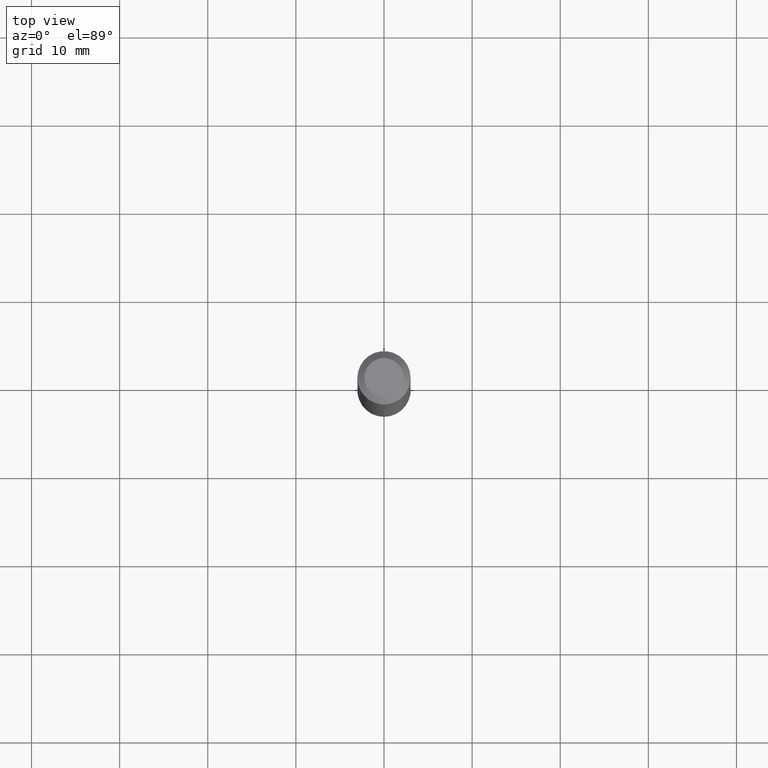
[diagram: clean part render]
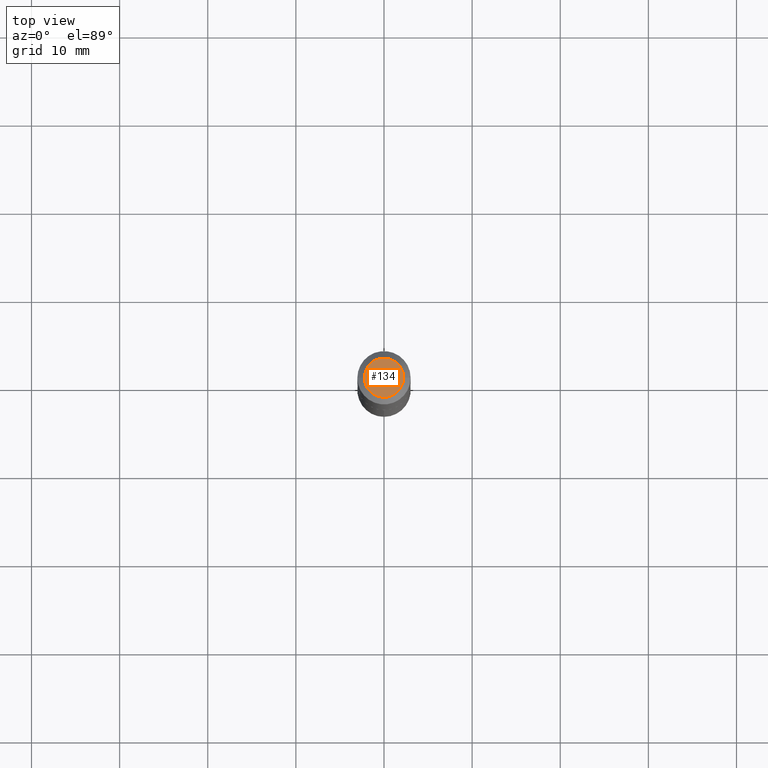
[diagram: same view with one face highlighted and labeled with its STEP entity id]
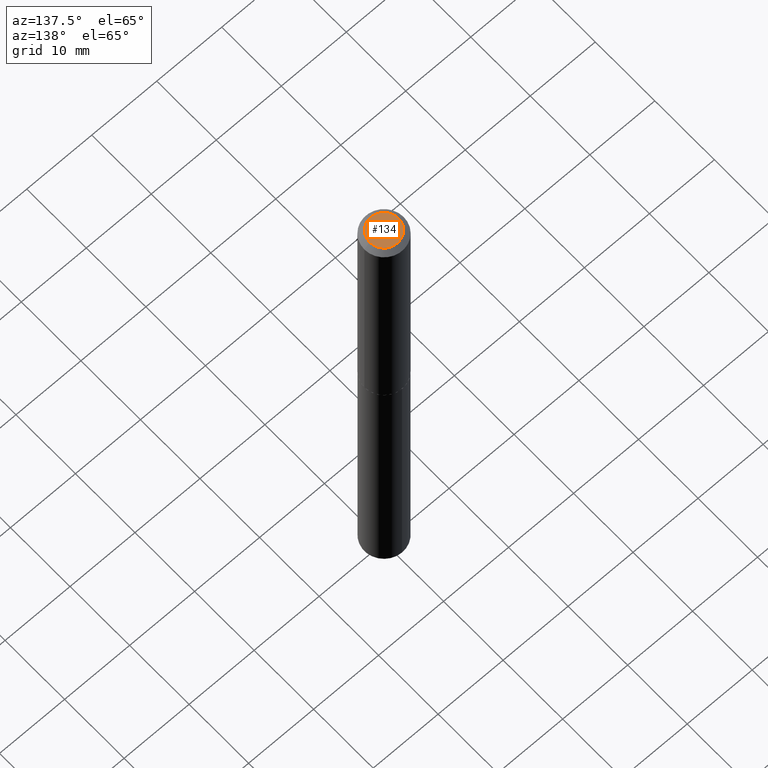
[diagram: same view with one face highlighted and labeled with its STEP entity id]
A machine part, top view. The second image highlights one B-rep face of the part: STEP entity #134.
A second angle (auxiliary view) of the same face is appended — the face is thin or edge-on in the first view.
In plain terms, the highlighted planar face has unit normal (0, -0, -1).
Its self-contained STEP definition (entity closure, byte-faithful):
#2 = PLANE ( 'NONE',  #358 ) ;
#22 = DIRECTION ( 'NONE',  ( -2.445468806185136597E-29, 3.491481338843145583E-15, 1.000000000000000000 ) ) ;
#30 = CARTESIAN_POINT ( 'NONE',  ( -5.989671091818585255E-48, 8.551662891793849420E-34, 2.449293598294678361E-19 ) ) ;
#66 = FACE_OUTER_BOUND ( 'NONE', #311, .T. ) ;
#71 = CARTESIAN_POINT ( 'NONE',  ( -5.989671091818585255E-48, 8.551662891793849420E-34, 2.449293598294678361E-19 ) ) ;
#96 = VERTEX_POINT ( 'NONE', #116 ) ;
#97 = EDGE_CURVE ( 'NONE', #158, #96, #139, .T. ) ;
#110 = CARTESIAN_POINT ( 'NONE',  ( 0.08775000000000000855, -7.637583764390566358E-16, 2.449293598342803980E-19 ) ) ;
#115 = DIRECTION ( 'NONE',  ( 1.000000000000000000, -6.982962677686267499E-15, 4.876175344873014679E-29 ) ) ;
#116 = CARTESIAN_POINT ( 'NONE',  ( -0.08775000000000000855, 6.673093708863934050E-16, 2.449293598249920712E-19 ) ) ;
#134 = ADVANCED_FACE ( 'NONE', ( #66 ), #2, .F. ) ;
#139 = CIRCLE ( 'NONE', #201, 0.08775000000000000855 ) ;
#158 = VERTEX_POINT ( 'NONE', #110 ) ;
#160 = EDGE_CURVE ( 'NONE', #96, #158, #284, .T. ) ;
#167 = DIRECTION ( 'NONE',  ( -1.000000000000000000, 6.982962677686265922E-15, -4.876176775795935793E-29 ) ) ;
#177 = DIRECTION ( 'NONE',  ( -2.445468806185136597E-29, 3.491481338843145583E-15, 1.000000000000000000 ) ) ;
#201 = AXIS2_PLACEMENT_3D ( 'NONE', #30, #22, #262 ) ;
#231 = DIRECTION ( 'NONE',  ( 2.438088387897960049E-29, -3.491481338843145188E-15, -1.000000000000000000 ) ) ;
#244 = ORIENTED_EDGE ( 'NONE', *, *, #97, .T. ) ;
#262 = DIRECTION ( 'NONE',  ( 1.000000000000000000, -6.982962677686267499E-15, 4.876175344873014679E-29 ) ) ;
#277 = ORIENTED_EDGE ( 'NONE', *, *, #160, .T. ) ;
#284 = CIRCLE ( 'NONE', #324, 0.08775000000000000855 ) ;
#311 = EDGE_LOOP ( 'NONE', ( #277, #244 ) ) ;
#324 = AXIS2_PLACEMENT_3D ( 'NONE', #71, #177, #115 ) ;
#358 = AXIS2_PLACEMENT_3D ( 'NONE', #369, #231, #167 ) ;
#369 = CARTESIAN_POINT ( 'NONE',  ( -2.994835545909292628E-48, 4.275831445896924710E-34, 1.224646799147339181E-19 ) ) ;